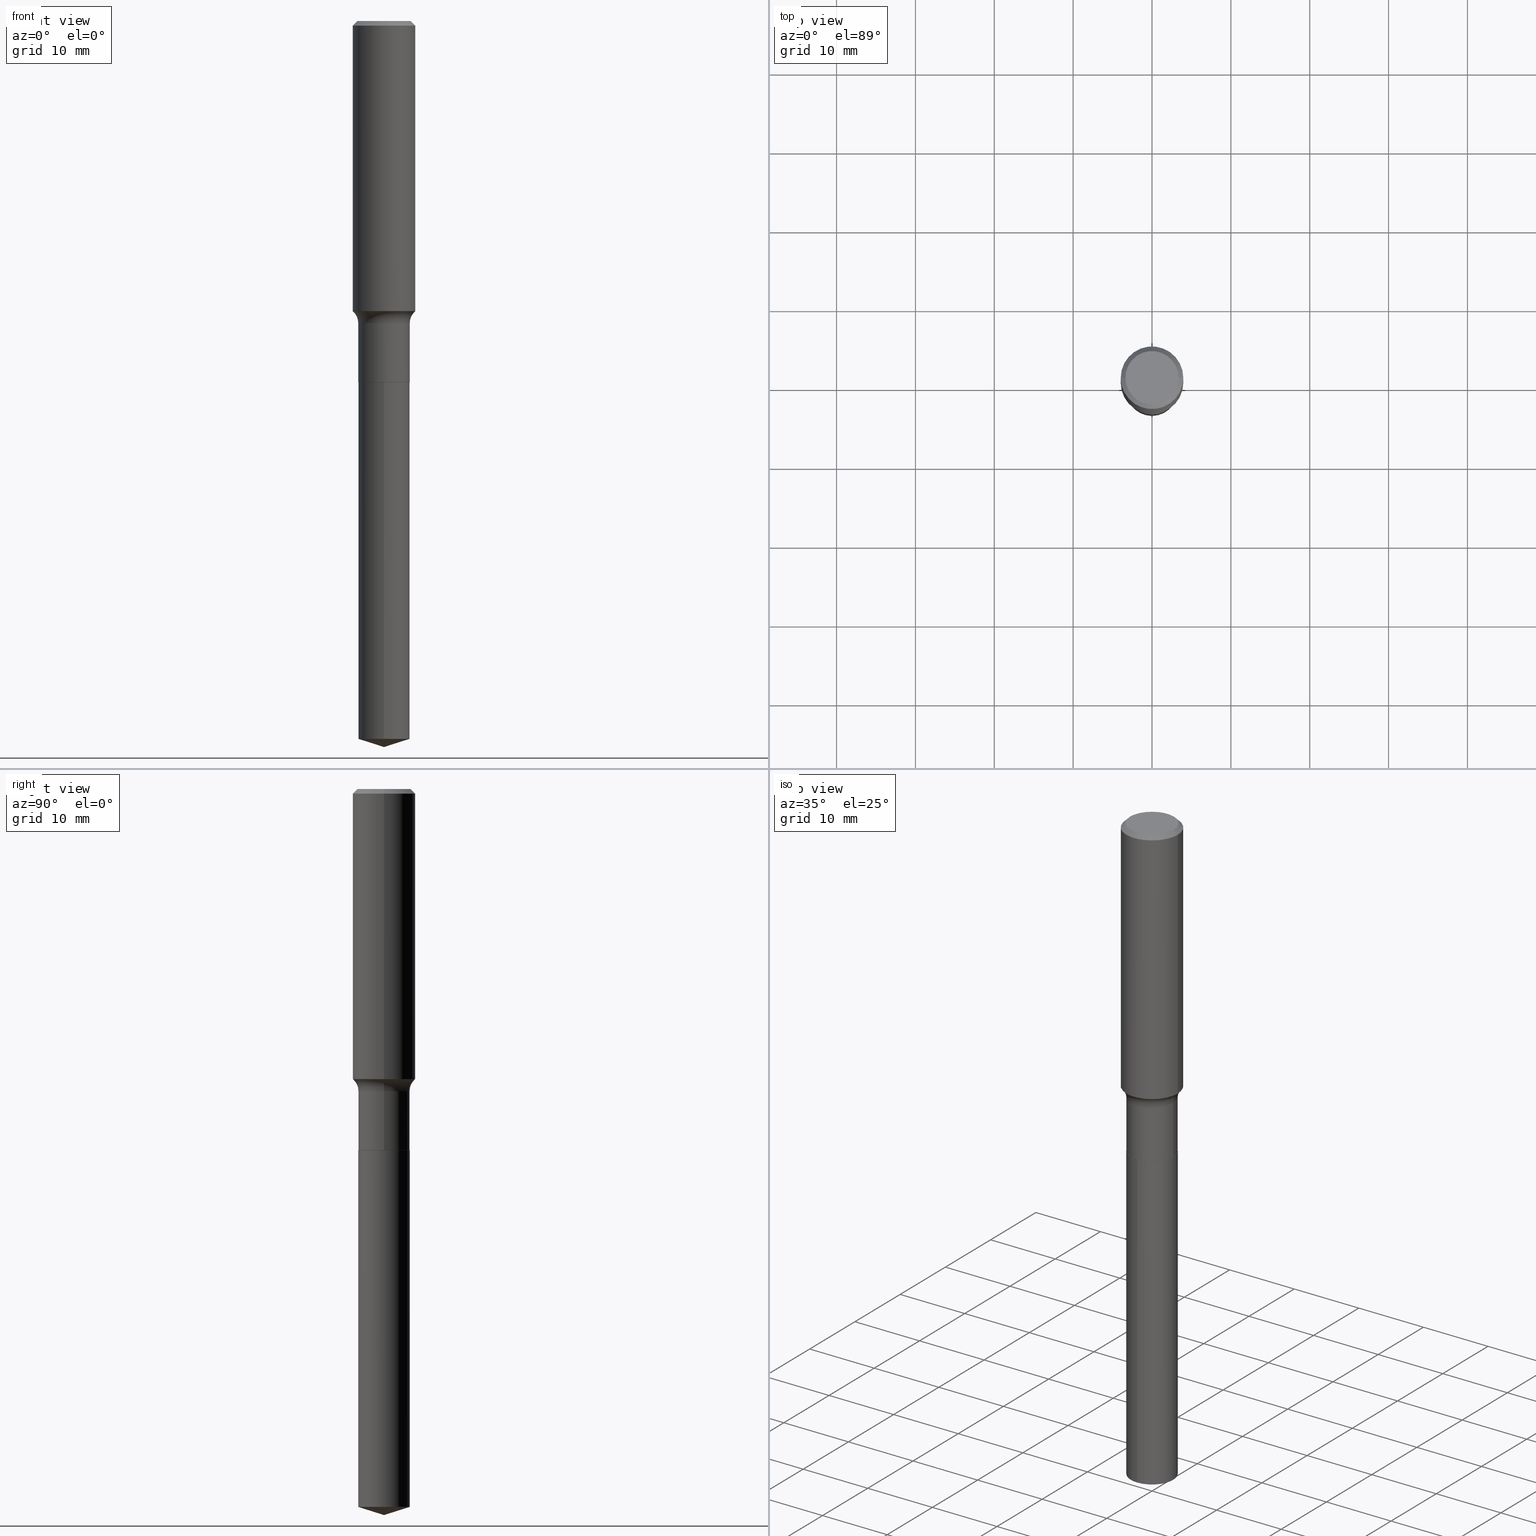
[diagram: canonical four-view strip — front | top / right | iso, engineering-drawing reading convention]
A machine part, canonical four-view strip (front | top / right | iso — engineering-drawing reading convention). The complete STEP part file that produces these views, byte-faithful:
ISO-10303-21;
HEADER;
FILE_DESCRIPTION (( 'STEP AP203' ),
    '1' );
FILE_NAME ('51512.STEP',
    '2024-04-19T12:55:22',
    ( '' ),
    ( '' ),
    'SwSTEP 2.0',
    'SolidWorks 2023',
    '' );
FILE_SCHEMA (( 'CONFIG_CONTROL_DESIGN' ));
ENDSEC;

DATA;
#1 = FACE_OUTER_BOUND ( 'NONE', #357, .T. ) ;
#2 = AXIS2_PLACEMENT_3D ( 'NONE', #33, #422, #296 ) ;
#3 = DIRECTION ( 'NONE',  ( 2.445468806185136597E-29, -3.491481338843145583E-15, -1.000000000000000000 ) ) ;
#4 = EDGE_LOOP ( 'NONE', ( #54, #242, #91 ) ) ;
#5 = EDGE_CURVE ( 'NONE', #428, #243, #370, .T. ) ;
#6 = FACE_OUTER_BOUND ( 'NONE', #150, .T. ) ;
#7 = ORIENTED_EDGE ( 'NONE', *, *, #74, .F. ) ;
#8 = CALENDAR_DATE ( 2024, 19, 4 ) ;
#9 = CARTESIAN_POINT ( 'NONE',  ( -0.1562500000000000000, -1.459648067697439575E-15, -0.02343750000000014225 ) ) ;
#10 = ORIENTED_EDGE ( 'NONE', *, *, #258, .F. ) ;
#11 = VECTOR ( 'NONE', #217, 39.37007874015748143 ) ;
#12 = DIRECTION ( 'NONE',  ( -2.445468806185136597E-29, 3.491481338843145583E-15, 1.000000000000000000 ) ) ;
#13 = ORIENTED_EDGE ( 'NONE', *, *, #368, .T. ) ;
#14 = CC_DESIGN_DATE_AND_TIME_ASSIGNMENT ( #421, #186, ( #39 ) ) ;
#15 = DIRECTION ( 'NONE',  ( -6.982962677686265922E-15, -1.000000000000000000, 3.500519750498682344E-15 ) ) ;
#16 = EDGE_LOOP ( 'NONE', ( #275, #431, #410 ) ) ;
#17 = APPROVAL_DATE_TIME ( #443, #413 ) ;
#18 = PLANE ( 'NONE',  #354 ) ;
#19 = ORIENTED_EDGE ( 'NONE', *, *, #239, .T. ) ;
#20 = AXIS2_PLACEMENT_3D ( 'NONE', #356, #432, #389 ) ;
#21 = CARTESIAN_POINT ( 'NONE',  ( 3.542611680774473923E-29, -5.057910590766056588E-15, -1.448643168873967380 ) ) ;
#22 = EDGE_CURVE ( 'NONE', #332, #388, #136, .T. ) ;
#23 = FACE_OUTER_BOUND ( 'NONE', #282, .T. ) ;
#24 = DIRECTION ( 'NONE',  ( 1.000000000000000000, -6.982962677686266711E-15, 0.000000000000000000 ) ) ;
#25 = ORIENTED_EDGE ( 'NONE', *, *, #404, .T. ) ;
#26 = ORGANIZATION ( 'UNSPECIFIED', 'UNSPECIFIED', '' ) ;
#27 = DIRECTION ( 'NONE',  ( -0.7071067811865453523, 2.468850131082234184E-15, -0.7071067811865496822 ) ) ;
#28 = DIRECTION ( 'NONE',  ( -2.445468806185136597E-29, 3.491481338843145583E-15, 1.000000000000000000 ) ) ;
#29 = ORIENTED_EDGE ( 'NONE', *, *, #249, .F. ) ;
#30 = LINE ( 'NONE', #339, #383 ) ;
#31 = VECTOR ( 'NONE', #161, 39.37007874015748143 ) ;
#32 = AXIS2_PLACEMENT_3D ( 'NONE', #252, #100, #285 ) ;
#33 = CARTESIAN_POINT ( 'NONE',  ( 3.688500600369042709E-29, -5.266201303377117503E-15, -1.508300000000000418 ) ) ;
#34 = APPROVAL_DATE_TIME ( #114, #99 ) ;
#35 =( CONVERSION_BASED_UNIT ( 'INCH', #460 ) LENGTH_UNIT ( ) NAMED_UNIT ( #49 ) );
#36 = DIRECTION ( 'NONE',  ( 0.7071067811865453523, -7.319954787623248157E-15, -0.7071067811865496822 ) ) ;
#37 = CIRCLE ( 'NONE', #280, 0.1280000000000000027 ) ;
#38 = CC_DESIGN_APPROVAL ( #253, ( #329 ) ) ;
#39 = PRODUCT_DEFINITION ( 'UNKNOWN', '', #329, #411 ) ;
#40 = PERSON_AND_ORGANIZATION ( #202, #26 ) ;
#41 = DIRECTION ( 'NONE',  ( 1.000000000000000000, -6.982962677686266711E-15, 4.876176775795935232E-29 ) ) ;
#42 = ORIENTED_EDGE ( 'NONE', *, *, #373, .F. ) ;
#43 = APPROVAL_STATUS ( 'not_yet_approved' ) ;
#44 = FACE_OUTER_BOUND ( 'NONE', #319, .T. ) ;
#45 = EDGE_LOOP ( 'NONE', ( #55, #478, #177, #353 ) ) ;
#46 = DIRECTION ( 'NONE',  ( -2.445676889258757921E-29, 3.491183352038366734E-15, 1.000000000000000000 ) ) ;
#47 = ADVANCED_FACE ( 'NONE', ( #205 ), #445, .T. ) ;
#48 = ORIENTED_EDGE ( 'NONE', *, *, #314, .F. ) ;
#49 = DIMENSIONAL_EXPONENTS ( 1.000000000000000000, 0.000000000000000000, 0.000000000000000000, 0.000000000000000000, 0.000000000000000000, 0.000000000000000000, 0.000000000000000000 ) ;
#50 = AXIS2_PLACEMENT_3D ( 'NONE', #125, #274, #348 ) ;
#51 = CARTESIAN_POINT ( 'NONE',  ( 9.130474154518167189E-16, 0.1284999999999937026, -1.803900000000000947 ) ) ;
#52 = ORIENTED_EDGE ( 'NONE', *, *, #363, .F. ) ;
#53 = CARTESIAN_POINT ( 'NONE',  ( 8.766114575995814745E-29, -1.251462877361542034E-14, -3.584484105629051509 ) ) ;
#54 = ORIENTED_EDGE ( 'NONE', *, *, #5, .F. ) ;
#55 = ORIENTED_EDGE ( 'NONE', *, *, #142, .T. ) ;
#56 = VERTEX_POINT ( 'NONE', #409 ) ;
#57 = AXIS2_PLACEMENT_3D ( 'NONE', #153, #430, #464 ) ;
#58 = CLOSED_SHELL ( 'NONE', ( #297, #323, #105, #183, #201, #456, #248, #379, #398, #157, #83, #135 ) ) ;
#59 = FACE_OUTER_BOUND ( 'NONE', #45, .T. ) ;
#60 = CARTESIAN_POINT ( 'NONE',  ( 5.731567514496448931E-31, -8.183159387913672688E-17, -0.02343750000000014225 ) ) ;
#61 = EDGE_CURVE ( 'NONE', #243, #313, #206, .T. ) ;
#62 = AXIS2_PLACEMENT_3D ( 'NONE', #73, #69, #185 ) ;
#63 = ORIENTED_EDGE ( 'NONE', *, *, #22, .F. ) ;
#64 = ORIENTED_EDGE ( 'NONE', *, *, #363, .T. ) ;
#65 = CARTESIAN_POINT ( 'NONE',  ( -0.1280000000000000027, -5.388788485366223965E-15, -1.803900000000000503 ) ) ;
#66 = CARTESIAN_POINT ( 'NONE',  ( -0.1285000000000000309, -4.868321959471694166E-15, -1.803400000000000114 ) ) ;
#67 = AXIS2_PLACEMENT_3D ( 'NONE', #479, #130, #284 ) ;
#68 = CIRCLE ( 'NONE', #167, 0.07800000000000002764 ) ;
#69 = DIRECTION ( 'NONE',  ( -2.445468806185136597E-29, 3.491481338843145583E-15, 1.000000000000000000 ) ) ;
#70 = AXIS2_PLACEMENT_3D ( 'NONE', #182, #108, #455 ) ;
#71 = DIRECTION ( 'NONE',  ( 1.000000000000000000, -6.982962677686263555E-15, 0.000000000000000000 ) ) ;
#72 = VERTEX_POINT ( 'NONE', #365 ) ;
#73 = CARTESIAN_POINT ( 'NONE',  ( 0.000000000000000000, 0.000000000000000000, 0.000000000000000000 ) ) ;
#74 = EDGE_CURVE ( 'NONE', #438, #72, #308, .T. ) ;
#75 = CALENDAR_DATE ( 2024, 19, 4 ) ;
#76 = DIRECTION ( 'NONE',  ( 1.000000000000000000, -6.982962677686267499E-15, 0.000000000000000000 ) ) ;
#77 = TOROIDAL_SURFACE ( 'NONE', #88, 0.2064999999999999614, 0.07800000000000004152 ) ;
#78 = ORIENTED_EDGE ( 'NONE', *, *, #368, .F. ) ;
#79 = LOCAL_TIME ( 8, 55, 22.00000000000000000, #423 ) ;
#80 = DIRECTION ( 'NONE',  ( -1.000000000000000000, 6.982962677686266711E-15, 0.000000000000000000 ) ) ;
#81 = ORIENTED_EDGE ( 'NONE', *, *, #220, .T. ) ;
#82 = PERSON_AND_ORGANIZATION ( #202, #26 ) ;
#83 = ADVANCED_FACE ( 'NONE', ( #94 ), #485, .F. ) ;
#84 = CARTESIAN_POINT ( 'NONE',  ( 0.1562500000000000833, -1.091087918388479765E-15, 7.619026212181153180E-30 ) ) ;
#85 = VERTEX_POINT ( 'NONE', #447 ) ;
#86 = CARTESIAN_POINT ( 'NONE',  ( -8.973107040826411986E-16, -0.1285000000000063036, -1.803899999999999837 ) ) ;
#87 = ORIENTED_EDGE ( 'NONE', *, *, #404, .F. ) ;
#88 = AXIS2_PLACEMENT_3D ( 'NONE', #300, #140, #144 ) ;
#89 = LINE ( 'NONE', #381, #180 ) ;
#90 = ORIENTED_EDGE ( 'NONE', *, *, #343, .F. ) ;
#91 = ORIENTED_EDGE ( 'NONE', *, *, #61, .F. ) ;
#92 = DIRECTION ( 'NONE',  ( 1.000000000000000000, -6.982962677686263555E-15, 0.000000000000000000 ) ) ;
#93 = ADVANCED_FACE ( 'NONE', ( #137 ), #480, .T. ) ;
#94 = FACE_OUTER_BOUND ( 'NONE', #425, .T. ) ;
#95 = AXIS2_PLACEMENT_3D ( 'NONE', #21, #325, #244 ) ;
#96 = CIRCLE ( 'NONE', #374, 0.1285000000000000031 ) ;
#97 = CIRCLE ( 'NONE', #375, 0.1562500000000000000 ) ;
#98 = DIRECTION ( 'NONE',  ( 2.438088387897960049E-29, -3.491481338843145188E-15, -1.000000000000000000 ) ) ;
#99 = APPROVAL ( #43, 'UNSPECIFIED' ) ;
#100 = DIRECTION ( 'NONE',  ( -2.445468806185136597E-29, 3.491481338843145583E-15, 1.000000000000000000 ) ) ;
#101 = DIRECTION ( 'NONE',  ( -6.982962677686265922E-15, -1.000000000000000000, 4.251903492084456561E-15 ) ) ;
#102 = TOROIDAL_SURFACE ( 'NONE', #2, 0.2064999999999999614, 0.07800000000000004152 ) ;
#103 = LINE ( 'NONE', #451, #212 ) ;
#104 = CARTESIAN_POINT ( 'NONE',  ( -7.955031918821654702E-47, 1.135767727816384474E-32, 3.252968060235159383E-18 ) ) ;
#105 = ADVANCED_FACE ( 'NONE', ( #59 ), #170, .T. ) ;
#106 = CIRCLE ( 'NONE', #154, 0.1284999999999999754 ) ;
#107 = CONICAL_SURFACE ( 'NONE', #477, 124.8659371009158576, 1.265363707695893458 ) ;
#108 = DIRECTION ( 'NONE',  ( -2.445676889258757921E-29, 3.491183352038366734E-15, 1.000000000000000000 ) ) ;
#109 = ORIENTED_EDGE ( 'NONE', *, *, #229, .F. ) ;
#110 = CLOSED_SHELL ( 'NONE', ( #128, #47, #337, #93, #491 ) ) ;
#111 = PERSON_AND_ORGANIZATION_ROLE ( 'design_owner' ) ;
#112 = CC_DESIGN_PERSON_AND_ORGANIZATION_ASSIGNMENT ( #82, #225, ( #417 ) ) ;
#113 = DIRECTION ( 'NONE',  ( -2.445676889258758202E-29, 3.491183352038367128E-15, 1.000000000000000000 ) ) ;
#114 = DATE_AND_TIME ( #159, #467 ) ;
#115 = CARTESIAN_POINT ( 'NONE',  ( 4.410158445074275915E-29, -6.296537446469729141E-15, -1.803400000000000114 ) ) ;
#116 =( NAMED_UNIT ( * ) SI_UNIT ( $, .STERADIAN. ) SOLID_ANGLE_UNIT ( ) );
#117 = DIRECTION ( 'NONE',  ( -6.982962677686265922E-15, -1.000000000000000000, 4.251903492084456561E-15 ) ) ;
#118 = AXIS2_PLACEMENT_3D ( 'NONE', #488, #461, #293 ) ;
#119 = ORIENTED_EDGE ( 'NONE', *, *, #178, .F. ) ;
#120 = PERSON_AND_ORGANIZATION_ROLE ( 'design_supplier' ) ;
#121 = CARTESIAN_POINT ( 'NONE',  ( -8.973107040825974169E-16, -0.1285000000000125209, -3.584484105629051065 ) ) ;
#122 = VERTEX_POINT ( 'NONE', #168 ) ;
#123 = CARTESIAN_POINT ( 'NONE',  ( 0.000000000000000000, 0.000000000000000000, 0.000000000000000000 ) ) ;
#124 = ORIENTED_EDGE ( 'NONE', *, *, #172, .T. ) ;
#125 = CARTESIAN_POINT ( 'NONE',  ( -0.2064999999999999614, -3.798930554032511288E-15, -1.508300000000000418 ) ) ;
#126 = EDGE_LOOP ( 'NONE', ( #465, #390, #109, #399 ) ) ;
#127 = CIRCLE ( 'NONE', #408, 0.1285000000000000309 ) ;
#128 = ADVANCED_FACE ( 'NONE', ( #288 ), #322, .T. ) ;
#129 = VERTEX_POINT ( 'NONE', #324 ) ;
#130 = DIRECTION ( 'NONE',  ( -2.445676889258757921E-29, 3.491183352038366734E-15, 1.000000000000000000 ) ) ;
#131 = MANIFOLD_SOLID_BREP ( 'Body-Move/Copy2[1]', #110 ) ;
#132 = DIRECTION ( 'NONE',  ( -2.445676889258757921E-29, 3.491183352038366734E-15, 1.000000000000000000 ) ) ;
#133 = APPROVAL_ROLE ( '' ) ;
#134 = CARTESIAN_POINT ( 'NONE',  ( -8.742128834059421557E-28, 1.247920862765412179E-13, 35.74507874015748143 ) ) ;
#135 = ADVANCED_FACE ( 'NONE', ( #439 ), #311, .T. ) ;
#136 = LINE ( 'NONE', #328, #453 ) ;
#137 = FACE_OUTER_BOUND ( 'NONE', #191, .T. ) ;
#138 = DIRECTION ( 'NONE',  ( -6.982962677686266711E-15, -1.000000000000000000, 3.491481338843145583E-15 ) ) ;
#139 = CIRCLE ( 'NONE', #118, 0.1285000000000000309 ) ;
#140 = DIRECTION ( 'NONE',  ( -2.445468806185136597E-29, 3.491481338843145583E-15, 1.000000000000000000 ) ) ;
#141 = CARTESIAN_POINT ( 'NONE',  ( 0.2064999999999999614, -6.708183096319331515E-15, -1.508300000000000418 ) ) ;
#142 = EDGE_CURVE ( 'NONE', #72, #438, #226, .T. ) ;
#143 = AXIS2_PLACEMENT_3D ( 'NONE', #490, #28, #298 ) ;
#144 = DIRECTION ( 'NONE',  ( 1.000000000000000000, -6.982962677686266711E-15, 4.883557194083112901E-29 ) ) ;
#145 = ORIENTED_EDGE ( 'NONE', *, *, #258, .T. ) ;
#146 =( NAMED_UNIT ( * ) PLANE_ANGLE_UNIT ( ) SI_UNIT ( $, .RADIAN. ) );
#147 = CARTESIAN_POINT ( 'NONE',  ( 0.1280000000000000027, -7.192102409882993604E-15, -1.803900000000000503 ) ) ;
#148 = EDGE_LOOP ( 'NONE', ( #476, #262, #29, #48 ) ) ;
#149 = CYLINDRICAL_SURFACE ( 'NONE', #224, 0.1562500000000000833 ) ;
#150 = EDGE_LOOP ( 'NONE', ( #283, #420, #441, #25 ) ) ;
#151 = PERSON_AND_ORGANIZATION ( #202, #26 ) ;
#152 = AXIS2_PLACEMENT_3D ( 'NONE', #371, #331, #208 ) ;
#153 = CARTESIAN_POINT ( 'NONE',  ( 4.411381179477369277E-29, -6.298283187139151433E-15, -1.803900000000000503 ) ) ;
#154 = AXIS2_PLACEMENT_3D ( 'NONE', #218, #295, #222 ) ;
#155 = VERTEX_POINT ( 'NONE', #366 ) ;
#156 = APPROVAL_PERSON_ORGANIZATION ( #40, #413, #133 ) ;
#157 = ADVANCED_FACE ( 'NONE', ( #23 ), #171, .F. ) ;
#158 = AXIS2_PLACEMENT_3D ( 'NONE', #104, #376, #264 ) ;
#159 = CALENDAR_DATE ( 2024, 19, 4 ) ;
#160 = PRODUCT_DEFINITION_SHAPE ( 'NONE', 'NONE',  #39 ) ;
#161 = DIRECTION ( 'NONE',  ( -2.445676889258758202E-29, 3.491183352038367128E-15, 1.000000000000000000 ) ) ;
#162 = EDGE_LOOP ( 'NONE', ( #7, #64, #486, #232 ) ) ;
#163 = CARTESIAN_POINT ( 'NONE',  ( -0.1562500000000001665, -3.947687566140898470E-15, -1.448643168873967380 ) ) ;
#164 = ORIENTED_EDGE ( 'NONE', *, *, #74, .T. ) ;
#165 = EDGE_CURVE ( 'NONE', #122, #388, #97, .T. ) ;
#166 = ORIENTED_EDGE ( 'NONE', *, *, #267, .F. ) ;
#167 = AXIS2_PLACEMENT_3D ( 'NONE', #141, #138, #181 ) ;
#168 = CARTESIAN_POINT ( 'NONE',  ( 0.1562500000000000000, -1.172919512267615999E-15, -0.02343750000000014225 ) ) ;
#169 = EDGE_CURVE ( 'NONE', #332, #129, #326, .T. ) ;
#170 = CYLINDRICAL_SURFACE ( 'NONE', #32, 0.1562500000000000833 ) ;
#171 = PLANE ( 'NONE',  #259 ) ;
#172 = EDGE_CURVE ( 'NONE', #56, #317, #290, .T. ) ;
#173 = AXIS2_PLACEMENT_3D ( 'NONE', #190, #46, #117 ) ;
#174 = DIRECTION ( 'NONE',  ( -2.445676889258757921E-29, 3.491183352038366734E-15, 1.000000000000000000 ) ) ;
#175 = ORIENTED_EDGE ( 'NONE', *, *, #303, .T. ) ;
#176 = CARTESIAN_POINT ( 'NONE',  ( -7.955031918821654702E-47, 1.135767727816384474E-32, 3.252968060235159383E-18 ) ) ;
#177 = ORIENTED_EDGE ( 'NONE', *, *, #165, .F. ) ;
#178 = EDGE_CURVE ( 'NONE', #473, #85, #106, .T. ) ;
#179 = CARTESIAN_POINT ( 'NONE',  ( 9.130474154518163245E-16, 0.1284999999999874853, -3.584484105629051953 ) ) ;
#180 = VECTOR ( 'NONE', #36, 39.37007874015748143 ) ;
#181 = DIRECTION ( 'NONE',  ( 1.000000000000000000, -6.982962677686268288E-15, 0.000000000000000000 ) ) ;
#182 = CARTESIAN_POINT ( 'NONE',  ( 4.411381179477369277E-29, -6.298283187139151433E-15, -1.803900000000000503 ) ) ;
#183 = ADVANCED_FACE ( 'NONE', ( #333 ), #102, .F. ) ;
#184 =( LENGTH_UNIT ( ) NAMED_UNIT ( * ) SI_UNIT ( $, .METRE. ) );
#185 = DIRECTION ( 'NONE',  ( 1.000000000000000000, -6.982962677686265922E-15, 4.876176775795936353E-29 ) ) ;
#186 = DATE_TIME_ROLE ( 'creation_date' ) ;
#187 = APPROVAL_PERSON_ORGANIZATION ( #151, #253, #344 ) ;
#188 = DIRECTION ( 'NONE',  ( -2.445676889258757921E-29, 3.491183352038366734E-15, 1.000000000000000000 ) ) ;
#189 = DATE_AND_TIME ( #75, #79 ) ;
#190 = CARTESIAN_POINT ( 'NONE',  ( 4.411381179477369277E-29, -6.298283187139151433E-15, -1.803900000000000503 ) ) ;
#191 = EDGE_LOOP ( 'NONE', ( #10, #386, #470, #359 ) ) ;
#192 = APPROVAL_ROLE ( '' ) ;
#193 = EDGE_CURVE ( 'NONE', #155, #346, #37, .T. ) ;
#194 = CARTESIAN_POINT ( 'NONE',  ( 0.1280000000000000027, -7.192102409882993604E-15, -1.803900000000000503 ) ) ;
#195 = VERTEX_POINT ( 'NONE', #372 ) ;
#196 = LINE ( 'NONE', #84, #342 ) ;
#197 = EDGE_LOOP ( 'NONE', ( #240, #437, #235, #78 ) ) ;
#198 = LOCAL_TIME ( 8, 55, 22.00000000000000000, #276 ) ;
#199 = LINE ( 'NONE', #318, #426 ) ;
#200 = ORIENTED_EDGE ( 'NONE', *, *, #474, .T. ) ;
#201 = ADVANCED_FACE ( 'NONE', ( #223 ), #454, .T. ) ;
#202 = PERSON ( 'UNSPECIFIED', 'UNSPECIFIED', 'UNSPECIFIED', ('UNSPECIFIED'), ('UNSPECIFIED'), ('UNSPECIFIED') ) ;
#203 = DIRECTION ( 'NONE',  ( -2.445676889258757921E-29, 3.491183352038366734E-15, 1.000000000000000000 ) ) ;
#204 = ORIENTED_EDGE ( 'NONE', *, *, #239, .F. ) ;
#205 = FACE_OUTER_BOUND ( 'NONE', #16, .T. ) ;
#206 = CIRCLE ( 'NONE', #294, 0.1285000000000000031 ) ;
#207 = SHAPE_DEFINITION_REPRESENTATION ( #160, #382 ) ;
#208 = DIRECTION ( 'NONE',  ( 1.000000000000000000, -6.982962677686265922E-15, 4.876176775795935793E-29 ) ) ;
#209 = EDGE_CURVE ( 'NONE', #216, #473, #30, .T. ) ;
#210 = DIRECTION ( 'NONE',  ( -2.445468806185136597E-29, 3.491481338843145583E-15, 1.000000000000000000 ) ) ;
#211 = EDGE_LOOP ( 'NONE', ( #166, #164, #175, #87 ) ) ;
#212 = VECTOR ( 'NONE', #412, 39.37007874015748143 ) ;
#213 = LOCAL_TIME ( 8, 55, 22.00000000000000000, #440 ) ;
#214 = DIRECTION ( 'NONE',  ( 6.776566513254261293E-15, 0.9537169507482292641, 0.3007057995042654586 ) ) ;
#215 = EDGE_CURVE ( 'NONE', #195, #85, #261, .T. ) ;
#216 = VERTEX_POINT ( 'NONE', #66 ) ;
#217 = DIRECTION ( 'NONE',  ( -0.7071067811864388819, 7.493145998869961307E-15, 0.7071067811866561525 ) ) ;
#218 = CARTESIAN_POINT ( 'NONE',  ( 3.688500600369042709E-29, -5.266201303377117503E-15, -1.508300000000000418 ) ) ;
#219 = AXIS2_PLACEMENT_3D ( 'NONE', #251, #405, #92 ) ;
#220 = EDGE_CURVE ( 'NONE', #72, #85, #68, .T. ) ;
#221 = MECHANICAL_CONTEXT ( 'NONE', #482, 'mechanical' ) ;
#222 = DIRECTION ( 'NONE',  ( 1.000000000000000000, -6.982962677686270655E-15, 0.000000000000000000 ) ) ;
#223 = FACE_OUTER_BOUND ( 'NONE', #126, .T. ) ;
#224 = AXIS2_PLACEMENT_3D ( 'NONE', #385, #234, #41 ) ;
#225 = PERSON_AND_ORGANIZATION_ROLE ( 'classification_officer' ) ;
#226 = CIRCLE ( 'NONE', #483, 0.1562500000000001388 ) ;
#227 = FACE_OUTER_BOUND ( 'NONE', #211, .T. ) ;
#228 = ORIENTED_EDGE ( 'NONE', *, *, #165, .T. ) ;
#229 = EDGE_CURVE ( 'NONE', #85, #473, #457, .T. ) ;
#230 = APPLICATION_PROTOCOL_DEFINITION ( 'international standard', 'config_control_design', 1994, #255 ) ;
#231 = DIRECTION ( 'NONE',  ( 2.445468806185136597E-29, -3.491481338843145583E-15, -1.000000000000000000 ) ) ;
#232 = ORIENTED_EDGE ( 'NONE', *, *, #220, .F. ) ;
#233 = COORDINATED_UNIVERSAL_TIME_OFFSET ( 5, 0, .BEHIND. ) ;
#234 = DIRECTION ( 'NONE',  ( -2.445468806185136597E-29, 3.491481338843145583E-15, 1.000000000000000000 ) ) ;
#235 = ORIENTED_EDGE ( 'NONE', *, *, #314, .T. ) ;
#236 = PRODUCT ( '51512', '51512', '', ( #221 ) ) ;
#237 = VECTOR ( 'NONE', #113, 39.37007874015748143 ) ;
#238 = DIRECTION ( 'NONE',  ( 1.000000000000000000, -6.982962677686265922E-15, 4.876176775795936353E-29 ) ) ;
#239 = EDGE_CURVE ( 'NONE', #129, #332, #334, .T. ) ;
#240 = ORIENTED_EDGE ( 'NONE', *, *, #286, .F. ) ;
#241 = CARTESIAN_POINT ( 'NONE',  ( 4.411381179477369277E-29, -6.298283187139151433E-15, -1.803900000000000503 ) ) ;
#242 = ORIENTED_EDGE ( 'NONE', *, *, #466, .T. ) ;
#243 = VERTEX_POINT ( 'NONE', #179 ) ;
#244 = DIRECTION ( 'NONE',  ( 1.000000000000000000, -6.982962677686269077E-15, 0.000000000000000000 ) ) ;
#245 = CALENDAR_DATE ( 2024, 19, 4 ) ;
#246 = AXIS2_PLACEMENT_3D ( 'NONE', #176, #419, #341 ) ;
#247 = DIRECTION ( 'NONE',  ( 1.000000000000000000, -6.982962677686269077E-15, 0.000000000000000000 ) ) ;
#248 = ADVANCED_FACE ( 'NONE', ( #1 ), #77, .F. ) ;
#249 = EDGE_CURVE ( 'NONE', #195, #216, #139, .T. ) ;
#250 = DIRECTION ( 'NONE',  ( -1.000000000000000000, 6.982962677686265922E-15, -4.876176775795935793E-29 ) ) ;
#251 = CARTESIAN_POINT ( 'NONE',  ( 4.411381179477369277E-29, -6.298283187139151433E-15, -1.803900000000000503 ) ) ;
#252 = CARTESIAN_POINT ( 'NONE',  ( 0.000000000000000000, 0.000000000000000000, 0.000000000000000000 ) ) ;
#253 = APPROVAL ( #310, 'UNSPECIFIED' ) ;
#254 = AXIS2_PLACEMENT_3D ( 'NONE', #392, #12, #312 ) ;
#255 = APPLICATION_CONTEXT ( 'configuration controlled 3d designs of mechanical parts and assemblies' ) ;
#256 = LINE ( 'NONE', #489, #237 ) ;
#257 = CARTESIAN_POINT ( 'NONE',  ( 0.1285000000000000031, -8.973107040826851776E-16, 6.265887156897778363E-30 ) ) ;
#258 = EDGE_CURVE ( 'NONE', #243, #317, #256, .T. ) ;
#259 = AXIS2_PLACEMENT_3D ( 'NONE', #481, #98, #250 ) ;
#260 = LOCAL_TIME ( 8, 55, 22.00000000000000000, #233 ) ;
#261 = LINE ( 'NONE', #257, #299 ) ;
#262 = ORIENTED_EDGE ( 'NONE', *, *, #286, .T. ) ;
#263 = DIRECTION ( 'NONE',  ( 1.000000000000000000, 0.000000000000000000, 0.000000000000000000 ) ) ;
#264 = DIRECTION ( 'NONE',  ( 1.000000000000000000, -6.982962677686268288E-15, 4.876286914311434227E-29 ) ) ;
#265 = PERSON_AND_ORGANIZATION_ROLE ( 'creator' ) ;
#266 = FACE_OUTER_BOUND ( 'NONE', #433, .T. ) ;
#267 = EDGE_CURVE ( 'NONE', #438, #388, #103, .T. ) ;
#268 = CIRCLE ( 'NONE', #20, 0.1562500000000000000 ) ;
#269 = APPLICATION_PROTOCOL_DEFINITION ( 'international standard', 'config_control_design', 1994, #482 ) ;
#270 = CC_DESIGN_SECURITY_CLASSIFICATION ( #417, ( #329 ) ) ;
#271 = DIRECTION ( 'NONE',  ( -1.000000000000000000, 6.982962677686266711E-15, 0.000000000000000000 ) ) ;
#272 = ORIENTED_EDGE ( 'NONE', *, *, #391, .T. ) ;
#273 = PERSON_AND_ORGANIZATION ( #202, #26 ) ;
#274 = DIRECTION ( 'NONE',  ( 7.105427357601001859E-15, 1.000000000000000000, -3.491481338843145583E-15 ) ) ;
#275 = ORIENTED_EDGE ( 'NONE', *, *, #466, .F. ) ;
#276 = COORDINATED_UNIVERSAL_TIME_OFFSET ( 5, 0, .BEHIND. ) ;
#277 = CC_DESIGN_PERSON_AND_ORGANIZATION_ASSIGNMENT ( #350, #265, ( #39 ) ) ;
#278 = DIRECTION ( 'NONE',  ( -2.445468806185136597E-29, 3.491481338843145583E-15, 1.000000000000000000 ) ) ;
#279 = EDGE_LOOP ( 'NONE', ( #307, #145, #321, #42 ) ) ;
#280 = AXIS2_PLACEMENT_3D ( 'NONE', #378, #415, #71 ) ;
#281 = LINE ( 'NONE', #147, #450 ) ;
#282 = EDGE_LOOP ( 'NONE', ( #393, #19 ) ) ;
#283 = ORIENTED_EDGE ( 'NONE', *, *, #474, .F. ) ;
#284 = DIRECTION ( 'NONE',  ( -6.982962677686265922E-15, -1.000000000000000000, 4.251903492084456561E-15 ) ) ;
#285 = DIRECTION ( 'NONE',  ( 1.000000000000000000, -6.982962677686266711E-15, 4.876176775795935232E-29 ) ) ;
#286 = EDGE_CURVE ( 'NONE', #155, #216, #338, .T. ) ;
#287 = CIRCLE ( 'NONE', #173, 0.1285000000000000031 ) ;
#288 = FACE_OUTER_BOUND ( 'NONE', #279, .T. ) ;
#289 = CC_DESIGN_APPROVAL ( #413, ( #417 ) ) ;
#290 = CIRCLE ( 'NONE', #70, 0.1285000000000000031 ) ;
#291 = DIRECTION ( 'NONE',  ( -6.982962677686265922E-15, -1.000000000000000000, 3.500519750498682344E-15 ) ) ;
#292 = CC_DESIGN_PERSON_AND_ORGANIZATION_ASSIGNMENT ( #273, #120, ( #329 ) ) ;
#293 = DIRECTION ( 'NONE',  ( 1.000000000000000000, -6.982962677686267499E-15, 0.000000000000000000 ) ) ;
#294 = AXIS2_PLACEMENT_3D ( 'NONE', #448, #174, #400 ) ;
#295 = DIRECTION ( 'NONE',  ( -2.445468806185136597E-29, 3.491481338843145583E-15, 1.000000000000000000 ) ) ;
#296 = DIRECTION ( 'NONE',  ( 1.000000000000000000, -6.982962677686266711E-15, 4.883557194083112901E-29 ) ) ;
#297 = ADVANCED_FACE ( 'NONE', ( #345 ), #401, .T. ) ;
#298 = DIRECTION ( 'NONE',  ( 1.000000000000000000, -6.982962677686270655E-15, 0.000000000000000000 ) ) ;
#299 = VECTOR ( 'NONE', #414, 39.37007874015748143 ) ;
#300 = CARTESIAN_POINT ( 'NONE',  ( 3.688500600369042709E-29, -5.266201303377117503E-15, -1.508300000000000418 ) ) ;
#301 = ORIENTED_EDGE ( 'NONE', *, *, #209, .F. ) ;
#302 = COORDINATED_UNIVERSAL_TIME_OFFSET ( 5, 0, .BEHIND. ) ;
#303 = EDGE_CURVE ( 'NONE', #72, #122, #196, .T. ) ;
#304 = CARTESIAN_POINT ( 'NONE',  ( -8.742128834059421557E-28, 1.247920862765412179E-13, 35.74507874015748143 ) ) ;
#305 = DIRECTION ( 'NONE',  ( 0.000000000000000000, 0.000000000000000000, 1.000000000000000000 ) ) ;
#306 = CARTESIAN_POINT ( 'NONE',  ( 5.731567514496448931E-31, -8.183159387913672688E-17, -0.02343750000000014225 ) ) ;
#307 = ORIENTED_EDGE ( 'NONE', *, *, #487, .T. ) ;
#308 = CIRCLE ( 'NONE', #95, 0.1562500000000001388 ) ;
#309 = AXIS2_PLACEMENT_3D ( 'NONE', #123, #278, #238 ) ;
#310 = APPROVAL_STATUS ( 'not_yet_approved' ) ;
#311 = CONICAL_SURFACE ( 'NONE', #219, 0.1280000000000000027, 0.7853981633972946241 ) ;
#312 = DIRECTION ( 'NONE',  ( 1.000000000000000000, -6.982962677686263555E-15, 0.000000000000000000 ) ) ;
#313 = VERTEX_POINT ( 'NONE', #121 ) ;
#314 = EDGE_CURVE ( 'NONE', #346, #195, #281, .T. ) ;
#315 = APPROVAL_DATE_TIME ( #189, #253 ) ;
#316 = CARTESIAN_POINT ( 'NONE',  ( 8.865578723562998972E-29, -1.265553965113908025E-14, -3.625000000000000444 ) ) ;
#317 = VERTEX_POINT ( 'NONE', #51 ) ;
#318 = CARTESIAN_POINT ( 'NONE',  ( 8.864828001449987336E-29, -1.265661472793336302E-14, -3.625000000000000444 ) ) ;
#319 = EDGE_LOOP ( 'NONE', ( #301, #13, #449, #119 ) ) ;
#320 = AXIS2_PLACEMENT_3D ( 'NONE', #394, #231, #271 ) ;
#321 = ORIENTED_EDGE ( 'NONE', *, *, #172, .F. ) ;
#322 = CYLINDRICAL_SURFACE ( 'NONE', #67, 0.1285000000000000031 ) ;
#323 = ADVANCED_FACE ( 'NONE', ( #266 ), #484, .T. ) ;
#324 = CARTESIAN_POINT ( 'NONE',  ( 0.1328125000000000000, -1.032472148179985084E-15, 3.252968060242011842E-18 ) ) ;
#325 = DIRECTION ( 'NONE',  ( -2.445468806185136597E-29, 3.491481338843145583E-15, 1.000000000000000000 ) ) ;
#326 = CIRCLE ( 'NONE', #158, 0.1328125000000000000 ) ;
#327 =( GEOMETRIC_REPRESENTATION_CONTEXT ( 3 ) GLOBAL_UNCERTAINTY_ASSIGNED_CONTEXT ( ( #406 ) ) GLOBAL_UNIT_ASSIGNED_CONTEXT ( ( #35, #146, #116 ) ) REPRESENTATION_CONTEXT ( 'NONE', 'WORKASPACE' ) );
#328 = CARTESIAN_POINT ( 'NONE',  ( -0.1562500000000000000, 1.009256324509342545E-15, -0.02343750000000014225 ) ) ;
#329 = PRODUCT_DEFINITION_FORMATION_WITH_SPECIFIED_SOURCE ( 'ANY', '', #236, .NOT_KNOWN. ) ;
#330 = PRODUCT_RELATED_PRODUCT_CATEGORY ( 'detail', '', ( #236 ) ) ;
#331 = DIRECTION ( 'NONE',  ( -2.438088387897960049E-29, 3.491481338843145188E-15, 1.000000000000000000 ) ) ;
#332 = VERTEX_POINT ( 'NONE', #424 ) ;
#333 = FACE_OUTER_BOUND ( 'NONE', #162, .T. ) ;
#334 = CIRCLE ( 'NONE', #246, 0.1328125000000000000 ) ;
#335 = CC_DESIGN_APPROVAL ( #99, ( #39 ) ) ;
#336 = VECTOR ( 'NONE', #214, 39.37007874015748854 ) ;
#337 = ADVANCED_FACE ( 'NONE', ( #358 ), #107, .T. ) ;
#338 = LINE ( 'NONE', #65, #11 ) ;
#339 = CARTESIAN_POINT ( 'NONE',  ( -0.1285000000000000031, 9.130474154517287609E-16, -6.320831590977554358E-30 ) ) ;
#340 = DIRECTION ( 'NONE',  ( 2.445676889258757361E-29, -3.491183352038367128E-15, -1.000000000000000000 ) ) ;
#341 = DIRECTION ( 'NONE',  ( 1.000000000000000000, -6.982962677686268288E-15, 4.876286914311434227E-29 ) ) ;
#342 = VECTOR ( 'NONE', #427, 39.37007874015748143 ) ;
#343 = EDGE_CURVE ( 'NONE', #346, #155, #369, .T. ) ;
#344 = APPROVAL_ROLE ( '' ) ;
#345 = FACE_OUTER_BOUND ( 'NONE', #148, .T. ) ;
#346 = VERTEX_POINT ( 'NONE', #194 ) ;
#347 = DATE_AND_TIME ( #377, #260 ) ;
#348 = DIRECTION ( 'NONE',  ( -1.000000000000000000, 7.105427357601001859E-15, 0.000000000000000000 ) ) ;
#349 = EDGE_LOOP ( 'NONE', ( #124, #272 ) ) ;
#350 = PERSON_AND_ORGANIZATION ( #202, #26 ) ;
#351 = DIRECTION ( 'NONE',  ( -2.445468806185136597E-29, 3.491481338843145583E-15, 1.000000000000000000 ) ) ;
#352 = CC_DESIGN_DATE_AND_TIME_ASSIGNMENT ( #347, #384, ( #417 ) ) ;
#353 = ORIENTED_EDGE ( 'NONE', *, *, #303, .F. ) ;
#354 = AXIS2_PLACEMENT_3D ( 'NONE', #241, #340, #471 ) ;
#355 = PERSON_AND_ORGANIZATION_ROLE ( 'creator' ) ;
#356 = CARTESIAN_POINT ( 'NONE',  ( 5.731567514496448931E-31, -8.183159387913672688E-17, -0.02343750000000014225 ) ) ;
#357 = EDGE_LOOP ( 'NONE', ( #52, #395, #81, #361 ) ) ;
#358 = FACE_OUTER_BOUND ( 'NONE', #4, .T. ) ;
#359 = ORIENTED_EDGE ( 'NONE', *, *, #391, .F. ) ;
#360 = FACE_OUTER_BOUND ( 'NONE', #349, .T. ) ;
#361 = ORIENTED_EDGE ( 'NONE', *, *, #229, .T. ) ;
#362 = APPROVAL_STATUS ( 'not_yet_approved' ) ;
#363 = EDGE_CURVE ( 'NONE', #438, #473, #434, .T. ) ;
#364 = CONICAL_SURFACE ( 'NONE', #320, 0.1562500000000000000, 0.7853981633974452814 ) ;
#365 = CARTESIAN_POINT ( 'NONE',  ( 0.1562500000000001665, -6.148998509154537339E-15, -1.448643168873967380 ) ) ;
#366 = CARTESIAN_POINT ( 'NONE',  ( -0.1280000000000000027, -5.386139258192112764E-15, -1.803900000000000503 ) ) ;
#367 = CARTESIAN_POINT ( 'NONE',  ( 4.411381179477369277E-29, -6.298283187139151433E-15, -1.803900000000000503 ) ) ;
#368 = EDGE_CURVE ( 'NONE', #216, #195, #127, .T. ) ;
#369 = CIRCLE ( 'NONE', #254, 0.1280000000000000027 ) ;
#370 = LINE ( 'NONE', #407, #336 ) ;
#371 = CARTESIAN_POINT ( 'NONE',  ( 4.411381179477369277E-29, -6.298283187139151433E-15, -1.803900000000000503 ) ) ;
#372 = CARTESIAN_POINT ( 'NONE',  ( 0.1285000000000000309, -7.193848150552414318E-15, -1.803400000000000114 ) ) ;
#373 = EDGE_CURVE ( 'NONE', #313, #56, #469, .T. ) ;
#374 = AXIS2_PLACEMENT_3D ( 'NONE', #53, #203, #396 ) ;
#375 = AXIS2_PLACEMENT_3D ( 'NONE', #60, #210, #24 ) ;
#376 = DIRECTION ( 'NONE',  ( -2.445468806185136597E-29, 3.491481338843145583E-15, 1.000000000000000000 ) ) ;
#377 = CALENDAR_DATE ( 2024, 19, 4 ) ;
#378 = CARTESIAN_POINT ( 'NONE',  ( 4.411381179477369277E-29, -6.298283187139151433E-15, -1.803900000000000503 ) ) ;
#379 = ADVANCED_FACE ( 'NONE', ( #227 ), #149, .T. ) ;
#380 = PERSON_AND_ORGANIZATION ( #202, #26 ) ;
#381 = CARTESIAN_POINT ( 'NONE',  ( 0.1562500000000000000, -1.153784406030938435E-15, -0.02343750000000014225 ) ) ;
#382 = ADVANCED_BREP_SHAPE_REPRESENTATION ( '51512', ( #131, #458, #459 ), #327 ) ;
#383 = VECTOR ( 'NONE', #492, 39.37007874015748143 ) ;
#384 = DATE_TIME_ROLE ( 'classification_date' ) ;
#385 = CARTESIAN_POINT ( 'NONE',  ( 0.000000000000000000, 0.000000000000000000, 0.000000000000000000 ) ) ;
#386 = ORIENTED_EDGE ( 'NONE', *, *, #61, .T. ) ;
#387 = PERSON_AND_ORGANIZATION ( #202, #26 ) ;
#388 = VERTEX_POINT ( 'NONE', #9 ) ;
#389 = DIRECTION ( 'NONE',  ( 1.000000000000000000, -6.982962677686266711E-15, 0.000000000000000000 ) ) ;
#390 = ORIENTED_EDGE ( 'NONE', *, *, #209, .T. ) ;
#391 = EDGE_CURVE ( 'NONE', #317, #56, #287, .T. ) ;
#392 = CARTESIAN_POINT ( 'NONE',  ( 4.411381179477369277E-29, -6.298283187139151433E-15, -1.803900000000000503 ) ) ;
#393 = ORIENTED_EDGE ( 'NONE', *, *, #169, .T. ) ;
#394 = CARTESIAN_POINT ( 'NONE',  ( 5.731567514496448931E-31, -8.183159387913672688E-17, -0.02343750000000014225 ) ) ;
#395 = ORIENTED_EDGE ( 'NONE', *, *, #142, .F. ) ;
#396 = DIRECTION ( 'NONE',  ( -6.982962677686265922E-15, -1.000000000000000000, 4.251903492084456561E-15 ) ) ;
#397 = ORIENTED_EDGE ( 'NONE', *, *, #193, .F. ) ;
#398 = ADVANCED_FACE ( 'NONE', ( #6 ), #364, .T. ) ;
#399 = ORIENTED_EDGE ( 'NONE', *, *, #215, .F. ) ;
#400 = DIRECTION ( 'NONE',  ( -6.982962677686265922E-15, -1.000000000000000000, 4.251903492084456561E-15 ) ) ;
#401 = CONICAL_SURFACE ( 'NONE', #57, 0.1280000000000000027, 0.7853981633972946241 ) ;
#402 = AXIS2_PLACEMENT_3D ( 'NONE', #134, #132, #291 ) ;
#403 = CARTESIAN_POINT ( 'NONE',  ( 3.542611680774473923E-29, -5.057910590766056588E-15, -1.448643168873967380 ) ) ;
#404 = EDGE_CURVE ( 'NONE', #388, #122, #268, .T. ) ;
#405 = DIRECTION ( 'NONE',  ( -2.445468806185136597E-29, 3.491481338843145583E-15, 1.000000000000000000 ) ) ;
#406 = UNCERTAINTY_MEASURE_WITH_UNIT (LENGTH_MEASURE( 1.000000000000000082E-05 ), #35, 'distance_accuracy_value', 'NONE');
#407 = CARTESIAN_POINT ( 'NONE',  ( 8.865585306509772413E-29, -1.265553965113908025E-14, -3.625000000000000444 ) ) ;
#408 = AXIS2_PLACEMENT_3D ( 'NONE', #115, #351, #76 ) ;
#409 = CARTESIAN_POINT ( 'NONE',  ( -8.973107040826411986E-16, -0.1285000000000063036, -1.803899999999999837 ) ) ;
#410 = ORIENTED_EDGE ( 'NONE', *, *, #487, .F. ) ;
#411 = DESIGN_CONTEXT ( 'detailed design', #255, 'design' ) ;
#412 = DIRECTION ( 'NONE',  ( -2.445468806185136877E-29, 3.491481338843145188E-15, 1.000000000000000000 ) ) ;
#413 = APPROVAL ( #362, 'UNSPECIFIED' ) ;
#414 = DIRECTION ( 'NONE',  ( -2.445468806185136877E-29, 3.491481338843145188E-15, 1.000000000000000000 ) ) ;
#415 = DIRECTION ( 'NONE',  ( -2.445468806185136597E-29, 3.491481338843145583E-15, 1.000000000000000000 ) ) ;
#416 = AXIS2_PLACEMENT_3D ( 'NONE', #306, #3, #80 ) ;
#417 = SECURITY_CLASSIFICATION ( '', '', #429 ) ;
#418 = CC_DESIGN_PERSON_AND_ORGANIZATION_ASSIGNMENT ( #380, #111, ( #236 ) ) ;
#419 = DIRECTION ( 'NONE',  ( -2.445468806185136597E-29, 3.491481338843145583E-15, 1.000000000000000000 ) ) ;
#420 = ORIENTED_EDGE ( 'NONE', *, *, #169, .F. ) ;
#421 = DATE_AND_TIME ( #8, #198 ) ;
#422 = DIRECTION ( 'NONE',  ( -2.445468806185136597E-29, 3.491481338843145583E-15, 1.000000000000000000 ) ) ;
#423 = COORDINATED_UNIVERSAL_TIME_OFFSET ( 5, 0, .BEHIND. ) ;
#424 = CARTESIAN_POINT ( 'NONE',  ( -0.1328125000000000000, 9.683405275697749214E-16, 3.252968060228530332E-18 ) ) ;
#425 = EDGE_LOOP ( 'NONE', ( #90, #397 ) ) ;
#426 = VECTOR ( 'NONE', #475, 39.37007874015748854 ) ;
#427 = DIRECTION ( 'NONE',  ( -2.445468806185136877E-29, 3.491481338843145188E-15, 1.000000000000000000 ) ) ;
#428 = VERTEX_POINT ( 'NONE', #316 ) ;
#429 = SECURITY_CLASSIFICATION_LEVEL ( 'unclassified' ) ;
#430 = DIRECTION ( 'NONE',  ( -2.445468806185136597E-29, 3.491481338843145583E-15, 1.000000000000000000 ) ) ;
#431 = ORIENTED_EDGE ( 'NONE', *, *, #5, .T. ) ;
#432 = DIRECTION ( 'NONE',  ( -2.445468806185136597E-29, 3.491481338843145583E-15, 1.000000000000000000 ) ) ;
#433 = EDGE_LOOP ( 'NONE', ( #204, #200, #228, #63 ) ) ;
#434 = CIRCLE ( 'NONE', #50, 0.07800000000000002764 ) ;
#435 = APPROVAL_PERSON_ORGANIZATION ( #387, #99, #192 ) ;
#436 = CARTESIAN_POINT ( 'NONE',  ( -0.1284999999999999754, -4.868321959471694166E-15, -1.508300000000000418 ) ) ;
#437 = ORIENTED_EDGE ( 'NONE', *, *, #193, .T. ) ;
#438 = VERTEX_POINT ( 'NONE', #163 ) ;
#439 = FACE_OUTER_BOUND ( 'NONE', #197, .T. ) ;
#440 = COORDINATED_UNIVERSAL_TIME_OFFSET ( 5, 0, .BEHIND. ) ;
#441 = ORIENTED_EDGE ( 'NONE', *, *, #22, .T. ) ;
#442 = DIRECTION ( 'NONE',  ( -2.445468806185136597E-29, 3.491481338843145583E-15, 1.000000000000000000 ) ) ;
#443 = DATE_AND_TIME ( #245, #213 ) ;
#444 = AXIS2_PLACEMENT_3D ( 'NONE', #367, #446, #101 ) ;
#445 = CONICAL_SURFACE ( 'NONE', #402, 124.8659371009158576, 1.265363707695893458 ) ;
#446 = DIRECTION ( 'NONE',  ( -2.445676889258757921E-29, 3.491183352038366734E-15, 1.000000000000000000 ) ) ;
#447 = CARTESIAN_POINT ( 'NONE',  ( 0.1284999999999999754, -6.163512007459803469E-15, -1.508300000000000418 ) ) ;
#448 = CARTESIAN_POINT ( 'NONE',  ( 8.766114575995814745E-29, -1.251462877361542034E-14, -3.584484105629051509 ) ) ;
#449 = ORIENTED_EDGE ( 'NONE', *, *, #215, .T. ) ;
#450 = VECTOR ( 'NONE', #463, 39.37007874015748143 ) ;
#451 = CARTESIAN_POINT ( 'NONE',  ( -0.1562500000000000833, 1.110223024625157132E-15, -7.685836078523293962E-30 ) ) ;
#452 = CC_DESIGN_PERSON_AND_ORGANIZATION_ASSIGNMENT ( #468, #355, ( #329 ) ) ;
#453 = VECTOR ( 'NONE', #27, 39.37007874015748143 ) ;
#454 = CYLINDRICAL_SURFACE ( 'NONE', #62, 0.1285000000000000031 ) ;
#455 = DIRECTION ( 'NONE',  ( -6.982962677686265922E-15, -1.000000000000000000, 4.251903492084456561E-15 ) ) ;
#456 = ADVANCED_FACE ( 'NONE', ( #44 ), #472, .T. ) ;
#457 = CIRCLE ( 'NONE', #143, 0.1284999999999999754 ) ;
#458 = MANIFOLD_SOLID_BREP ( 'Body-Move/Copy2[2]', #58 ) ;
#459 = AXIS2_PLACEMENT_3D ( 'NONE', #462, #305, #263 ) ;
#460 = LENGTH_MEASURE_WITH_UNIT ( LENGTH_MEASURE( 0.02539999999999999897 ), #184 );
#461 = DIRECTION ( 'NONE',  ( -2.445468806185136597E-29, 3.491481338843145583E-15, 1.000000000000000000 ) ) ;
#462 = CARTESIAN_POINT ( 'NONE',  ( 0.000000000000000000, 0.000000000000000000, 0.000000000000000000 ) ) ;
#463 = DIRECTION ( 'NONE',  ( 0.7071067811864388819, -2.468850131081119129E-15, 0.7071067811866561525 ) ) ;
#464 = DIRECTION ( 'NONE',  ( 1.000000000000000000, -6.982962677686263555E-15, 0.000000000000000000 ) ) ;
#465 = ORIENTED_EDGE ( 'NONE', *, *, #249, .T. ) ;
#466 = EDGE_CURVE ( 'NONE', #428, #313, #199, .T. ) ;
#467 = LOCAL_TIME ( 8, 55, 22.00000000000000000, #302 ) ;
#468 = PERSON_AND_ORGANIZATION ( #202, #26 ) ;
#469 = LINE ( 'NONE', #86, #31 ) ;
#470 = ORIENTED_EDGE ( 'NONE', *, *, #373, .T. ) ;
#471 = DIRECTION ( 'NONE',  ( 6.982962677686265922E-15, 1.000000000000000000, -3.491183352038367128E-15 ) ) ;
#472 = CYLINDRICAL_SURFACE ( 'NONE', #309, 0.1285000000000000031 ) ;
#473 = VERTEX_POINT ( 'NONE', #436 ) ;
#474 = EDGE_CURVE ( 'NONE', #129, #122, #89, .T. ) ;
#475 = DIRECTION ( 'NONE',  ( -6.659769872151635244E-15, -0.9537169507482271547, 0.3007057995042720644 ) ) ;
#476 = ORIENTED_EDGE ( 'NONE', *, *, #343, .T. ) ;
#477 = AXIS2_PLACEMENT_3D ( 'NONE', #304, #188, #15 ) ;
#478 = ORIENTED_EDGE ( 'NONE', *, *, #267, .T. ) ;
#479 = CARTESIAN_POINT ( 'NONE',  ( 4.411381179477369277E-29, -6.298283187139151433E-15, -1.803900000000000503 ) ) ;
#480 = CYLINDRICAL_SURFACE ( 'NONE', #444, 0.1285000000000000031 ) ;
#481 = CARTESIAN_POINT ( 'NONE',  ( -3.977515959410827351E-47, 5.678838639081922371E-33, 1.626484030117579692E-18 ) ) ;
#482 = APPLICATION_CONTEXT ( 'configuration controlled 3d designs of mechanical parts and assemblies' ) ;
#483 = AXIS2_PLACEMENT_3D ( 'NONE', #403, #442, #247 ) ;
#484 = CONICAL_SURFACE ( 'NONE', #416, 0.1562500000000000000, 0.7853981633974452814 ) ;
#485 = PLANE ( 'NONE',  #152 ) ;
#486 = ORIENTED_EDGE ( 'NONE', *, *, #178, .T. ) ;
#487 = EDGE_CURVE ( 'NONE', #313, #243, #96, .T. ) ;
#488 = CARTESIAN_POINT ( 'NONE',  ( 4.410158445074275915E-29, -6.296537446469729141E-15, -1.803400000000000114 ) ) ;
#489 = CARTESIAN_POINT ( 'NONE',  ( 9.130474154517729371E-16, 0.1284999999999937026, -1.803900000000000947 ) ) ;
#490 = CARTESIAN_POINT ( 'NONE',  ( 3.688500600369042709E-29, -5.266201303377117503E-15, -1.508300000000000418 ) ) ;
#491 = ADVANCED_FACE ( 'NONE', ( #360 ), #18, .F. ) ;
#492 = DIRECTION ( 'NONE',  ( -2.445468806185136877E-29, 3.491481338843145188E-15, 1.000000000000000000 ) ) ;
ENDSEC;
END-ISO-10303-21;
